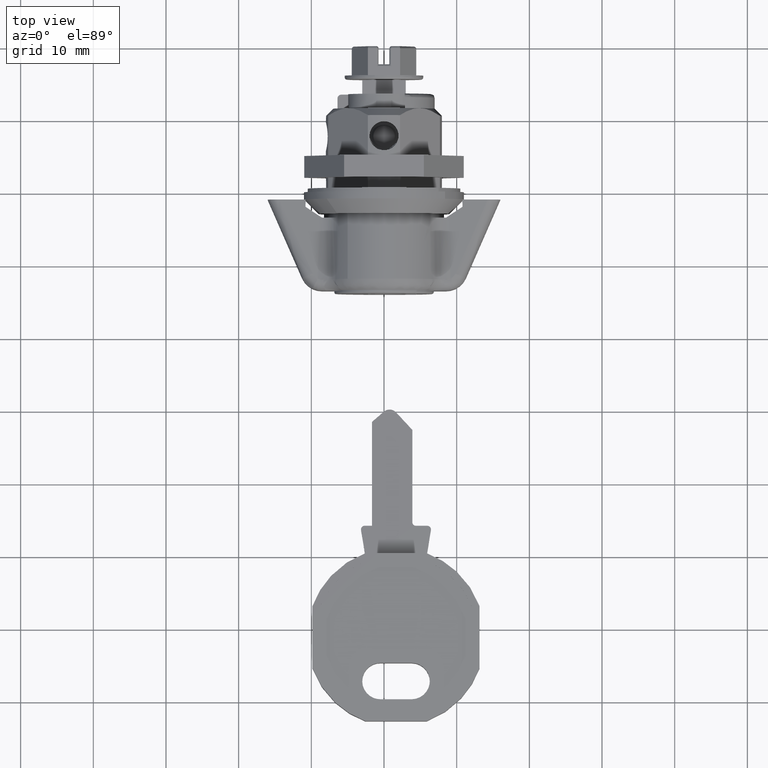
[diagram: clean part render]
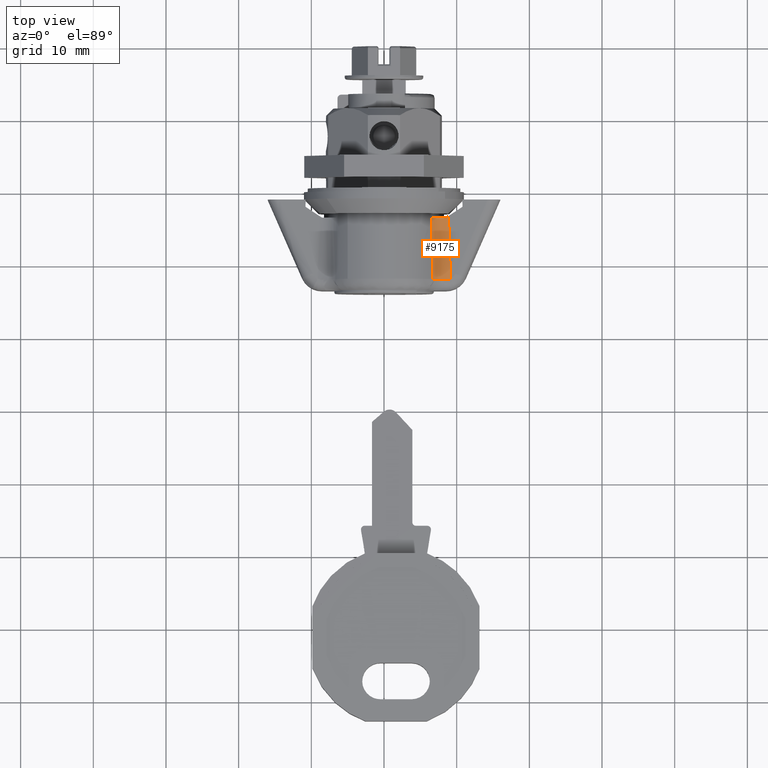
[diagram: same view with one face highlighted and labeled with its STEP entity id]
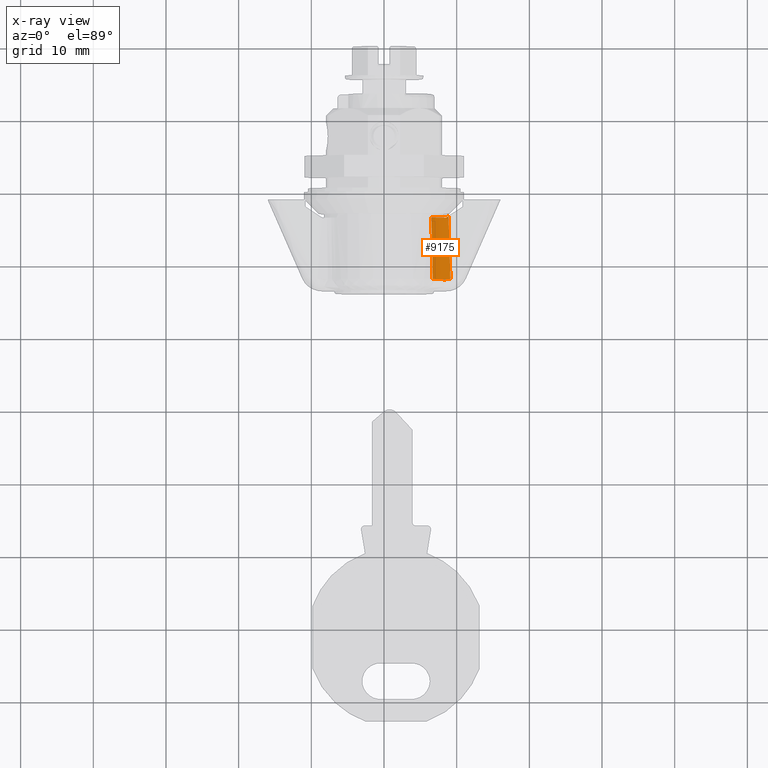
[diagram: x-ray of the same camera — body ghosted, the highlighted face saturated]
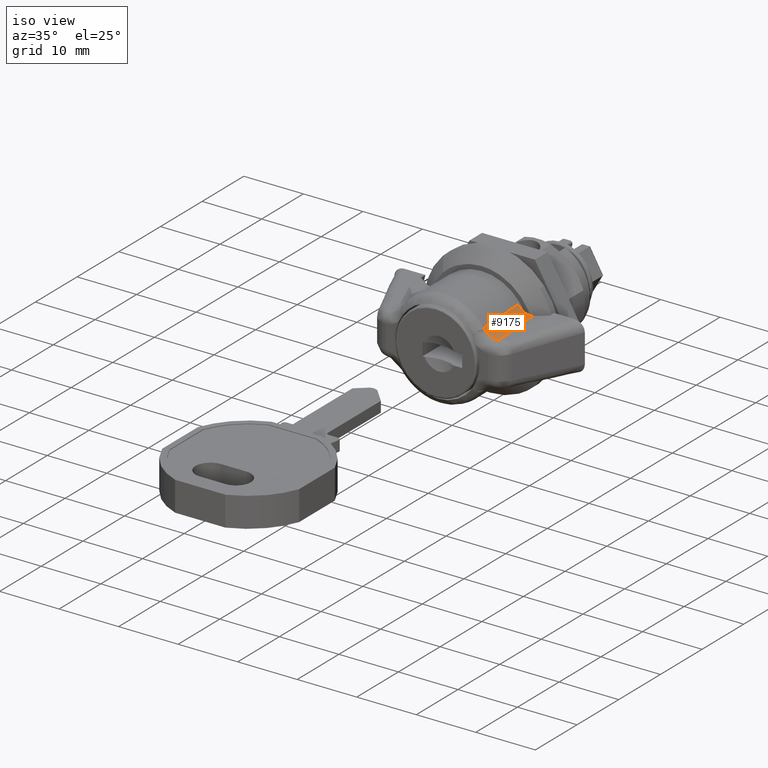
[diagram: same view with one face highlighted and labeled with its STEP entity id]
A machine part, top view. The second image highlights one B-rep face of the part: STEP entity #9175.
The next image is the same camera in x-ray: the body ghosted, the highlighted face saturated — about 0% of this face is hidden behind the body in this view.
A second angle (iso view) of the same face is appended — the face is thin or edge-on in the first view.
In plain terms, the highlighted face is a freeform B-spline surface patch.
Its self-contained STEP definition (entity closure, byte-faithful):
#2952=CARTESIAN_POINT('',(-11.958595524794280,-6.698288580509970,4.816164091660800));
#2953=VERTEX_POINT('',#2952);
#2970=CARTESIAN_POINT('',(-3.499999593926215,-6.514251208219280,5.062312677461480));
#2971=VERTEX_POINT('',#2970);
#2972=CARTESIAN_POINT('',(-11.958595524794280,-6.698288580509970,4.816164091660800));
#2973=CARTESIAN_POINT('',(-3.499999593926215,-6.514251208219280,5.062312677461480));
#2974=QUASI_UNIFORM_CURVE('',1,(#2972,#2973),.UNSPECIFIED.,.F.,.U.);
#2975=EDGE_CURVE('',#2953,#2971,#2974,.T.);
#7181=CARTESIAN_POINT('',(-11.888524256505599,-9.135424191538210,3.567915884497220));
#7182=VERTEX_POINT('',#7181);
#7266=CARTESIAN_POINT('',(-11.986896434150999,-8.941368969694649,3.570477499128765));
#7267=VERTEX_POINT('',#7266);
#7290=CARTESIAN_POINT('',(-11.986896434150999,-8.941368969694649,3.570477499128765));
#7291=CARTESIAN_POINT('',(-11.964318379795900,-9.010525821757467,3.566999685676240));
#7292=CARTESIAN_POINT('',(-11.930972522340900,-9.076273812708447,3.566135135002654));
#7293=CARTESIAN_POINT('',(-11.888524256505599,-9.135424191538210,3.567915884497220));
#7294=B_SPLINE_CURVE_WITH_KNOTS('',3,(#7290,#7291,#7292,#7293),.UNSPECIFIED.,.F.,.U.,(4,4),(8.159455E-009,0.218493711169564),.UNSPECIFIED.);
#7295=EDGE_CURVE('',#7267,#7182,#7294,.T.);
#7429=CARTESIAN_POINT('',(-12.007779024172580,-8.346621777832899,3.669633733464005));
#7430=VERTEX_POINT('',#7429);
#7528=CARTESIAN_POINT('',(-11.958595524794280,-6.698288580509970,4.816164091660800));
#7529=CARTESIAN_POINT('',(-11.964693604879111,-6.835136345310001,4.625670993319415));
#7530=CARTESIAN_POINT('',(-11.976331853828230,-7.139186766018301,4.292806775196796));
#7531=CARTESIAN_POINT('',(-11.993140716000410,-7.702508040749345,3.900963481541360));
#7532=CARTESIAN_POINT('',(-12.003043448640700,-8.120394705322934,3.731689687930564));
#7533=CARTESIAN_POINT('',(-12.007779024172580,-8.346621777832899,3.669633733464005));
#7534=B_SPLINE_CURVE_WITH_KNOTS('',3,(#7528,#7529,#7530,#7531,#7532,#7533),.UNSPECIFIED.,.F.,.U.,(4,1,1,4),(0.000000016104795,0.703895359303505,1.343784189252335,2.047679532450949),.UNSPECIFIED.);
#7535=EDGE_CURVE('',#2953,#7430,#7534,.T.);
#9126=CARTESIAN_POINT('',(-3.054117873791366,-9.004160976276262,3.921269895734163));
#9127=CARTESIAN_POINT('',(-12.200121054727800,-9.275523439095082,3.558333801785318));
#9128=CARTESIAN_POINT('',(-3.101811281910262,-7.295078620875049,3.845287552791385));
#9129=CARTESIAN_POINT('',(-12.247814462846705,-7.566441083693873,3.482351458842537));
#9130=CARTESIAN_POINT('',(-3.186331124877206,-6.361574620593874,5.277222311348738));
#9131=CARTESIAN_POINT('',(-12.332334305813644,-6.632937083412698,4.914286217399889));
#9139=(BOUNDED_SURFACE()B_SPLINE_SURFACE(1,2,((#9126,#9128,#9130),(#9127,#9129,#9131)),.UNSPECIFIED.,.F.,.F.,.U.)B_SPLINE_SURFACE_WITH_KNOTS((2,2),(3,3),(0.0,9.157223071445698),(0.0,3.182172013229137),.UNSPECIFIED.)GEOMETRIC_REPRESENTATION_ITEM()RATIONAL_B_SPLINE_SURFACE(((1.0,0.867409305603447,0.997260786621612),(1.0,0.867409305603447,0.997260786621612)))REPRESENTATION_ITEM('')SURFACE());
#9140=CARTESIAN_POINT('',(-12.007779024172580,-8.346621777832899,3.669633733464005));
#9141=CARTESIAN_POINT('',(-12.000144397070770,-8.540843643668111,3.616710175767848));
#9142=CARTESIAN_POINT('',(-11.993136552031320,-8.740435885403709,3.583438688363467));
#9143=CARTESIAN_POINT('',(-11.986896434150999,-8.941368969694649,3.570477499128765));
#9144=B_SPLINE_CURVE_WITH_KNOTS('',3,(#9140,#9141,#9142,#9143),.UNSPECIFIED.,.F.,.U.,(4,4),(1.466000E-009,0.604343039284950),.UNSPECIFIED.);
#9145=EDGE_CURVE('',#7430,#7267,#9144,.T.);
#9146=ORIENTED_EDGE('',*,*,#9145,.T.);
#9147=ORIENTED_EDGE('',*,*,#7295,.T.);
#9148=CARTESIAN_POINT('',(-3.275514891812160,-8.879815623728529,3.909701979482120));
#9149=VERTEX_POINT('',#9148);
#9150=CARTESIAN_POINT('',(-3.275514891812160,-8.879815623728529,3.909701979482120));
#9151=CARTESIAN_POINT('',(-11.888524256505599,-9.135424191538210,3.567915884497220));
#9152=QUASI_UNIFORM_CURVE('',1,(#9150,#9151),.UNSPECIFIED.,.F.,.U.);
#9153=EDGE_CURVE('',#9149,#7182,#9152,.T.);
#9154=ORIENTED_EDGE('',*,*,#9153,.F.);
#9155=CARTESIAN_POINT('',(-3.499999561154495,-8.524166656420499,3.922777237470689));
#9156=VERTEX_POINT('',#9155);
#9157=CARTESIAN_POINT('',(-3.499999561154495,-8.524166656420499,3.922777237470689));
#9158=CARTESIAN_POINT('',(-3.275514891812160,-8.879815623728529,3.909701979482120));
#9159=QUASI_UNIFORM_CURVE('',1,(#9157,#9158),.UNSPECIFIED.,.F.,.U.);
#9160=EDGE_CURVE('',#9156,#9149,#9159,.T.);
#9161=ORIENTED_EDGE('',*,*,#9160,.F.);
#9162=CARTESIAN_POINT('',(-3.499999593926215,-6.514251208219280,5.062312677461480));
#9163=CARTESIAN_POINT('',(-3.499999594134081,-6.726236100898962,4.788977145865337));
#9164=CARTESIAN_POINT('',(-3.499999591254744,-7.078998989856476,4.468919741470299));
#9165=CARTESIAN_POINT('',(-3.499999579674233,-7.772775202484628,4.086799901676274));
#9166=CARTESIAN_POINT('',(-3.499999569754090,-8.205318430711294,3.961414485472386));
#9167=CARTESIAN_POINT('',(-3.499999561154495,-8.524166656420499,3.922777237470689));
#9168=B_SPLINE_CURVE_WITH_KNOTS('',3,(#9162,#9163,#9164,#9165,#9166,#9167),.UNSPECIFIED.,.F.,.U.,(4,1,1,4),(0.000000027646281,1.037563734187190,1.408098158552477,2.371551304619811),.UNSPECIFIED.);
#9169=EDGE_CURVE('',#2971,#9156,#9168,.T.);
#9170=ORIENTED_EDGE('',*,*,#9169,.F.);
#9171=ORIENTED_EDGE('',*,*,#2975,.F.);
#9172=ORIENTED_EDGE('',*,*,#7535,.T.);
#9173=EDGE_LOOP('',(#9146,#9147,#9154,#9161,#9170,#9171,#9172));
#9174=FACE_OUTER_BOUND('',#9173,.T.);
#9175=ADVANCED_FACE('',(#9174),#9139,.F.);